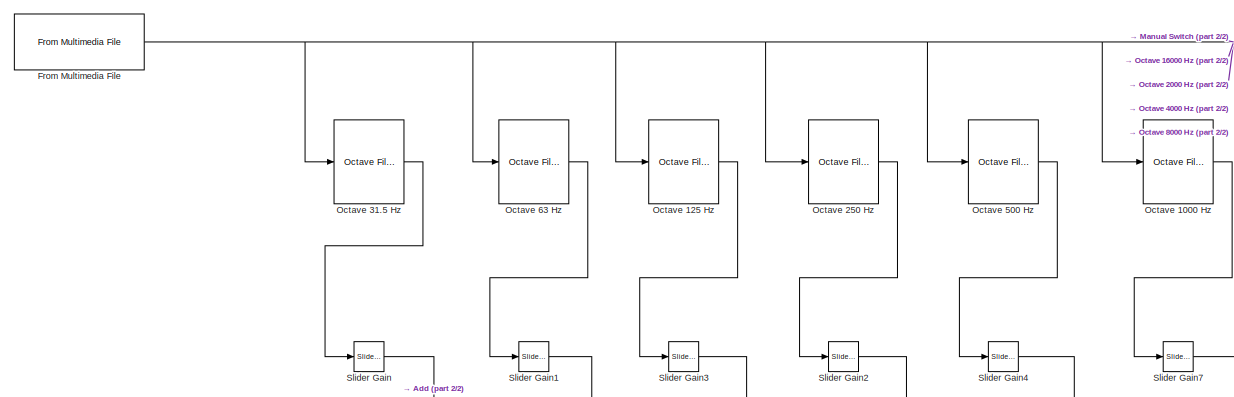
[diagram: root canvas - part 1/2, top left region]
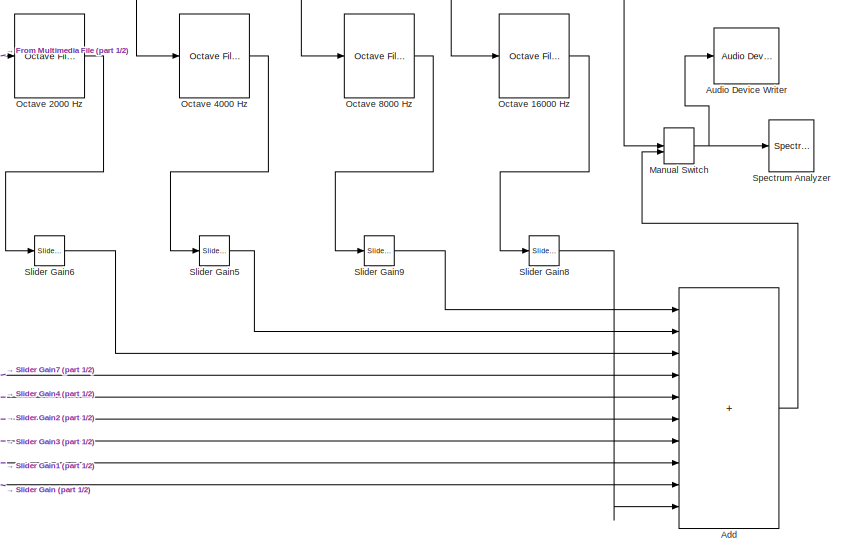
[diagram: root canvas - part 2/2, right side, full height]
MODEL slx_1456691f12f9
KIND model
CONFIG AbsTol = auto
CONFIG EnableMultiTasking = off
CONFIG FixedStep = auto
CONFIG MaxStep = auto
CONFIG MinStep = auto
CONFIG RelTol = 1e-3
CONFIG SampleTimeConstraint = Unconstrained
CONFIG Solver = VariableStepAuto
CONFIG SolverName = VariableStepAuto
CONFIG StartTime = 0.0
CONFIG StopTime = 100
BLOCK [Sum] Add
  IconShape = rectangular
  Inputs = ++++++++++
  Ports = [10, 1]
BLOCK [Reference] Audio Device Writer  REF=dspsnks4/Audio Device
Writer
  Ports = [1]
  SourceBlock = dspsnks4/Audio Device\nWriter
  SourceProductBaseCode = DS
  SourceType = Audio Device Writer
BLOCK [Reference] From Multimedia File  REF=dspvision/From Multimedia File
  Ports = [0, 1]
  SourceBlock = dspvision/From Multimedia File
  SourceProductBaseCode = DS,HW,VP
  SourceType = From Multimedia File
BLOCK [ManualSwitch] Manual Switch
  CurrentSetting = 0
BLOCK [Reference] Octave 1000 Hz  REF=audiofilters/Octave Filter
  Ports = [1, 1]
  SourceBlock = audiofilters/Octave Filter
  SourceProductBaseCode = AU
  SourceType = audio.simulink.OctaveFilter
BLOCK [Reference] Octave 125 Hz  REF=audiofilters/Octave Filter
  Ports = [1, 1]
  SourceBlock = audiofilters/Octave Filter
  SourceProductBaseCode = AU
  SourceType = audio.simulink.OctaveFilter
BLOCK [Reference] Octave 16000 Hz  REF=audiofilters/Octave Filter
  Ports = [1, 1]
  SourceBlock = audiofilters/Octave Filter
  SourceProductBaseCode = AU
  SourceType = audio.simulink.OctaveFilter
BLOCK [Reference] Octave 2000 Hz  REF=audiofilters/Octave Filter
  Ports = [1, 1]
  SourceBlock = audiofilters/Octave Filter
  SourceProductBaseCode = AU
  SourceType = audio.simulink.OctaveFilter
BLOCK [Reference] Octave 250 Hz  REF=audiofilters/Octave Filter
  Ports = [1, 1]
  SourceBlock = audiofilters/Octave Filter
  SourceProductBaseCode = AU
  SourceType = audio.simulink.OctaveFilter
BLOCK [Reference] Octave 31.5 Hz  REF=audiofilters/Octave Filter
  Ports = [1, 1]
  SourceBlock = audiofilters/Octave Filter
  SourceProductBaseCode = AU
  SourceType = audio.simulink.OctaveFilter
BLOCK [Reference] Octave 4000 Hz  REF=audiofilters/Octave Filter
  Ports = [1, 1]
  SourceBlock = audiofilters/Octave Filter
  SourceProductBaseCode = AU
  SourceType = audio.simulink.OctaveFilter
BLOCK [Reference] Octave 500 Hz  REF=audiofilters/Octave Filter
  Ports = [1, 1]
  SourceBlock = audiofilters/Octave Filter
  SourceProductBaseCode = AU
  SourceType = audio.simulink.OctaveFilter
BLOCK [Reference] Octave 63 Hz  REF=audiofilters/Octave Filter
  Ports = [1, 1]
  SourceBlock = audiofilters/Octave Filter
  SourceProductBaseCode = AU
  SourceType = audio.simulink.OctaveFilter
BLOCK [Reference] Octave 8000 Hz  REF=audiofilters/Octave Filter
  Ports = [1, 1]
  SourceBlock = audiofilters/Octave Filter
  SourceProductBaseCode = AU
  SourceType = audio.simulink.OctaveFilter
BLOCK [Reference] Slider Gain  REF=simulink/Math
Operations/Slider
Gain
  Ports = [1, 1]
  SourceBlock = simulink/Math\nOperations/Slider\nGain
  SourceProductBaseCode = SL
  SourceType = Slider Gain
BLOCK [Reference] Slider Gain1  REF=simulink/Math
Operations/Slider
Gain
  Ports = [1, 1]
  SourceBlock = simulink/Math\nOperations/Slider\nGain
  SourceProductBaseCode = SL
  SourceType = Slider Gain
BLOCK [Reference] Slider Gain2  REF=simulink/Math
Operations/Slider
Gain
  Ports = [1, 1]
  SourceBlock = simulink/Math\nOperations/Slider\nGain
  SourceProductBaseCode = SL
  SourceType = Slider Gain
BLOCK [Reference] Slider Gain3  REF=simulink/Math
Operations/Slider
Gain
  Ports = [1, 1]
  SourceBlock = simulink/Math\nOperations/Slider\nGain
  SourceProductBaseCode = SL
  SourceType = Slider Gain
BLOCK [Reference] Slider Gain4  REF=simulink/Math
Operations/Slider
Gain
  Ports = [1, 1]
  SourceBlock = simulink/Math\nOperations/Slider\nGain
  SourceProductBaseCode = SL
  SourceType = Slider Gain
BLOCK [Reference] Slider Gain5  REF=simulink/Math
Operations/Slider
Gain
  Ports = [1, 1]
  SourceBlock = simulink/Math\nOperations/Slider\nGain
  SourceProductBaseCode = SL
  SourceType = Slider Gain
BLOCK [Reference] Slider Gain6  REF=simulink/Math
Operations/Slider
Gain
  Ports = [1, 1]
  SourceBlock = simulink/Math\nOperations/Slider\nGain
  SourceProductBaseCode = SL
  SourceType = Slider Gain
BLOCK [Reference] Slider Gain7  REF=simulink/Math
Operations/Slider
Gain
  Ports = [1, 1]
  SourceBlock = simulink/Math\nOperations/Slider\nGain
  SourceProductBaseCode = SL
  SourceType = Slider Gain
BLOCK [Reference] Slider Gain8  REF=simulink/Math
Operations/Slider
Gain
  Ports = [1, 1]
  SourceBlock = simulink/Math\nOperations/Slider\nGain
  SourceProductBaseCode = SL
  SourceType = Slider Gain
BLOCK [Reference] Slider Gain9  REF=simulink/Math
Operations/Slider
Gain
  Ports = [1, 1]
  SourceBlock = simulink/Math\nOperations/Slider\nGain
  SourceProductBaseCode = SL
  SourceType = Slider Gain
BLOCK [SpectrumAnalyzer] Spectrum Analyzer
  Ports = [1]
  ScopeSpecificationString = spbscopes.SpectrumAnalyzerBlockCfg('CurrentConfiguration', extmgr.ConfigurationSet(extmgr.Configuration('Core','General UI',true),extmgr.Configuration('Core','Source UI',true),extmgr.Configuration('Sources','WiredSimulink',true),extmgr.Configuration('Visuals','Spectrum',true,'AxesProperties',struct('Color',{[0 0 0],[0 0 0]},'XColor',{[0.686274509803922 0.686274509803922 0.686274509803922],[0.68627...<+2136ch>
LINE Add:1 -> Manual Switch:2
NET From Multimedia File:1 -> Manual Switch:1, Octave 1000 Hz:1, Octave 125 Hz:1, Octave 16000 Hz:1, Octave 2000 Hz:1, Octave 250 Hz:1, Octave 31.5 Hz:1, Octave 4000 Hz:1, Octave 500 Hz:1, Octave 63 Hz:1, Octave 8000 Hz:1
NET Manual Switch:1 -> Audio Device Writer:1, Spectrum Analyzer:1
LINE Octave 1000 Hz:1 -> Slider Gain7:1
LINE Octave 125 Hz:1 -> Slider Gain3:1
LINE Octave 16000 Hz:1 -> Slider Gain8:1
LINE Octave 2000 Hz:1 -> Slider Gain6:1
LINE Octave 250 Hz:1 -> Slider Gain2:1
LINE Octave 31.5 Hz:1 -> Slider Gain:1
LINE Octave 4000 Hz:1 -> Slider Gain5:1
LINE Octave 500 Hz:1 -> Slider Gain4:1
LINE Octave 63 Hz:1 -> Slider Gain1:1
LINE Octave 8000 Hz:1 -> Slider Gain9:1
LINE Slider Gain1:1 -> Add:8
LINE Slider Gain2:1 -> Add:6
LINE Slider Gain3:1 -> Add:7
LINE Slider Gain4:1 -> Add:5
LINE Slider Gain5:1 -> Add:2
LINE Slider Gain6:1 -> Add:3
LINE Slider Gain7:1 -> Add:4
LINE Slider Gain8:1 -> Add:10
LINE Slider Gain9:1 -> Add:1
LINE Slider Gain:1 -> Add:9
note: NET lines group one-source signal fan-out (src -> all destinations, sorted); 1:1 wires keep LINE
